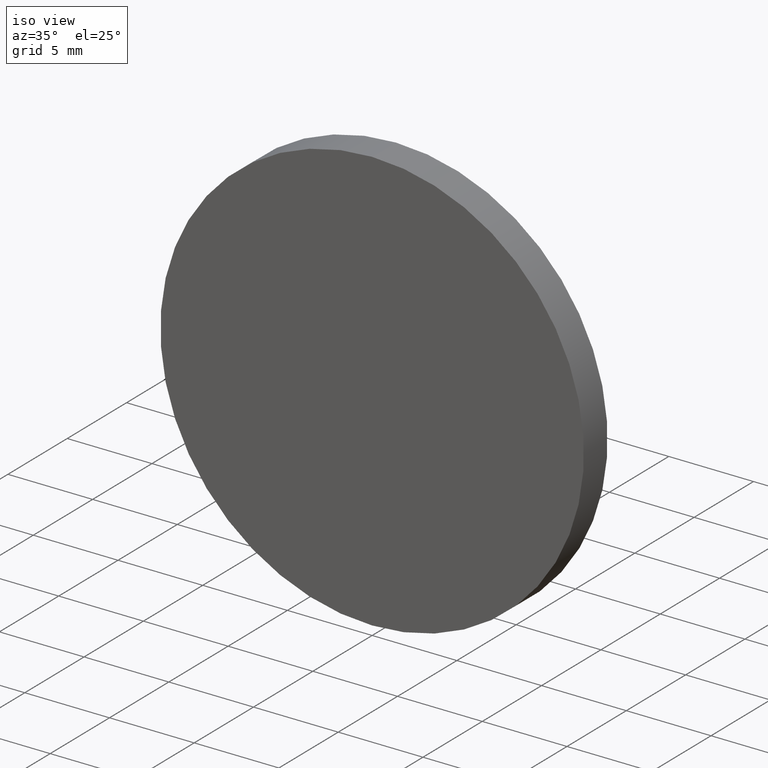
[diagram: clean part render]
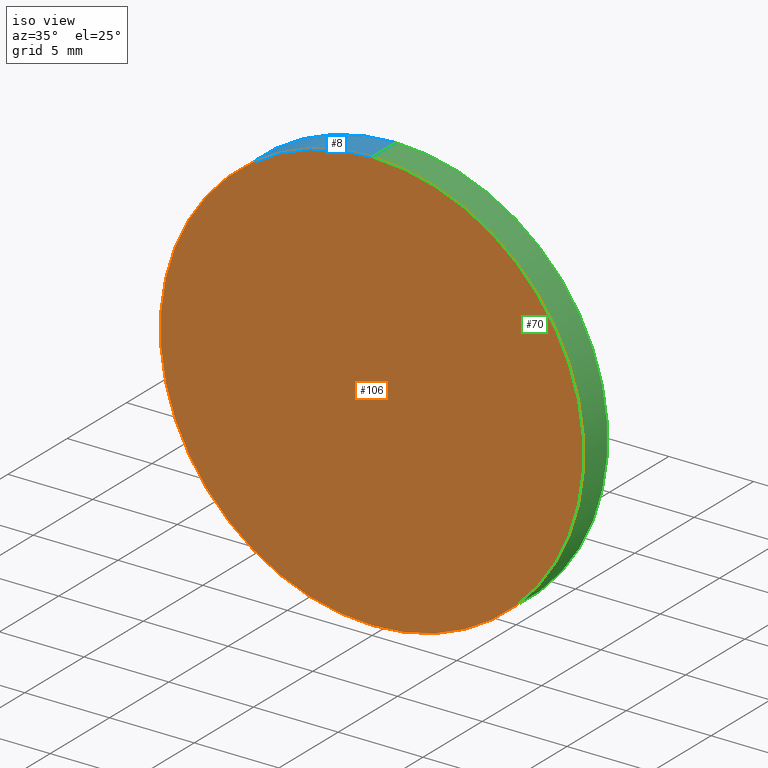
[diagram: same view with three faces highlighted in distinct colors, each labeled with its STEP entity id]
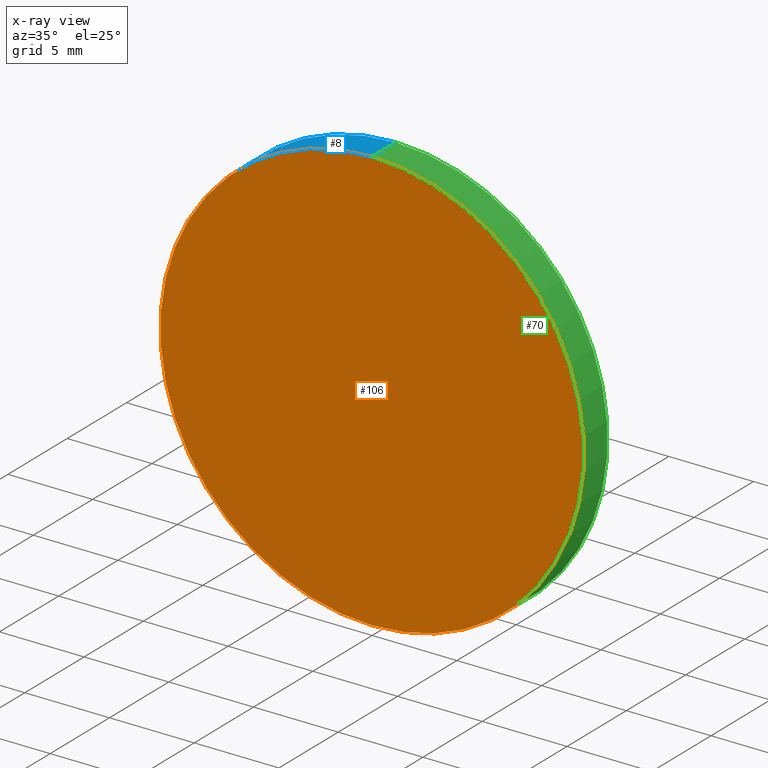
[diagram: x-ray of the same camera — body ghosted, the three highlighted faces saturated]
A machine part, iso view with three faces highlighted in distinct colors.
The next image is the same camera in x-ray (body ghosted, the three faces saturated) — at least one of them is partly hidden behind the body in this view.
Their STEP definitions:

[orange] entity #106 — the highlighted planar face has unit normal (0, 1, 0).
#1 = CARTESIAN_POINT ( 'NONE',  ( 0.0000000000000000000, 0.0000000000000000000, 0.0000000000000000000 ) ) ;
#4 = CARTESIAN_POINT ( 'NONE',  ( 0.0000000000000000000, 0.0000000000000000000, 0.0000000000000000000 ) ) ;
#5 = FACE_OUTER_BOUND ( 'NONE', #105, .T. ) ;
#18 = VERTEX_POINT ( 'NONE', #114 ) ;
#25 = PLANE ( 'NONE',  #56 ) ;
#32 = DIRECTION ( 'NONE',  ( 0.0000000000000000000, -0.0000000000000000000, 1.000000000000000000 ) ) ;
#34 = CIRCLE ( 'NONE', #57, 12.50000000000000000 ) ;
#38 = EDGE_CURVE ( 'NONE', #44, #18, #34, .T. ) ;
#44 = VERTEX_POINT ( 'NONE', #121 ) ;
#56 = AXIS2_PLACEMENT_3D ( 'NONE', #122, #110, #32 ) ;
#57 = AXIS2_PLACEMENT_3D ( 'NONE', #4, #79, #135 ) ;
#64 = AXIS2_PLACEMENT_3D ( 'NONE', #1, #73, #131 ) ;
#71 = CIRCLE ( 'NONE', #64, 12.50000000000000000 ) ;
#73 = DIRECTION ( 'NONE',  ( 0.0000000000000000000, 1.000000000000000000, 0.0000000000000000000 ) ) ;
#79 = DIRECTION ( 'NONE',  ( 0.0000000000000000000, 1.000000000000000000, 0.0000000000000000000 ) ) ;
#92 = ORIENTED_EDGE ( 'NONE', *, *, #38, .F. ) ;
#105 = EDGE_LOOP ( 'NONE', ( #132, #92 ) ) ;
#106 = ADVANCED_FACE ( 'NONE', ( #5 ), #25, .F. ) ;
#110 = DIRECTION ( 'NONE',  ( 0.0000000000000000000, 1.000000000000000000, 0.0000000000000000000 ) ) ;
#114 = CARTESIAN_POINT ( 'NONE',  ( 0.0000000000000000000, 0.0000000000000000000, -12.50000000000000000 ) ) ;
#115 = EDGE_CURVE ( 'NONE', #18, #44, #71, .T. ) ;
#121 = CARTESIAN_POINT ( 'NONE',  ( 1.530808498934191500E-015, 0.0000000000000000000, 12.50000000000000000 ) ) ;
#122 = CARTESIAN_POINT ( 'NONE',  ( 0.0000000000000000000, 0.0000000000000000000, 0.0000000000000000000 ) ) ;
#131 = DIRECTION ( 'NONE',  ( 0.0000000000000000000, 0.0000000000000000000, 1.000000000000000000 ) ) ;
#132 = ORIENTED_EDGE ( 'NONE', *, *, #115, .F. ) ;
#135 = DIRECTION ( 'NONE',  ( 0.0000000000000000000, 0.0000000000000000000, 1.000000000000000000 ) ) ;

[blue] entity #8 — the highlighted cylindrical surface (partial cylindrical patch) has radius 12.5 mm, axis along (-0, -1, -0).
#1 = CARTESIAN_POINT ( 'NONE',  ( 0.0000000000000000000, 0.0000000000000000000, 0.0000000000000000000 ) ) ;
#2 = DIRECTION ( 'NONE',  ( -0.0000000000000000000, -1.000000000000000000, -0.0000000000000000000 ) ) ;
#8 = ADVANCED_FACE ( 'NONE', ( #12 ), #99, .T. ) ;
#9 = LINE ( 'NONE', #88, #125 ) ;
#12 = FACE_OUTER_BOUND ( 'NONE', #85, .T. ) ;
#16 = CARTESIAN_POINT ( 'NONE',  ( 0.0000000000000000000, 2.000000000000000000, 0.0000000000000000000 ) ) ;
#18 = VERTEX_POINT ( 'NONE', #114 ) ;
#19 = CIRCLE ( 'NONE', #118, 12.50000000000000000 ) ;
#26 = DIRECTION ( 'NONE',  ( 0.0000000000000000000, 0.0000000000000000000, 1.000000000000000000 ) ) ;
#27 = DIRECTION ( 'NONE',  ( -0.0000000000000000000, -1.000000000000000000, -0.0000000000000000000 ) ) ;
#36 = DIRECTION ( 'NONE',  ( 0.0000000000000000000, 1.000000000000000000, 0.0000000000000000000 ) ) ;
#37 = DIRECTION ( 'NONE',  ( 0.0000000000000000000, 0.0000000000000000000, -1.000000000000000000 ) ) ;
#40 = ORIENTED_EDGE ( 'NONE', *, *, #47, .F. ) ;
#44 = VERTEX_POINT ( 'NONE', #121 ) ;
#47 = EDGE_CURVE ( 'NONE', #91, #58, #19, .T. ) ;
#50 = ORIENTED_EDGE ( 'NONE', *, *, #104, .F. ) ;
#58 = VERTEX_POINT ( 'NONE', #63 ) ;
#62 = DIRECTION ( 'NONE',  ( -0.0000000000000000000, -1.000000000000000000, -0.0000000000000000000 ) ) ;
#63 = CARTESIAN_POINT ( 'NONE',  ( 1.530808498934191500E-015, 2.000000000000000000, 12.50000000000000000 ) ) ;
#64 = AXIS2_PLACEMENT_3D ( 'NONE', #1, #73, #131 ) ;
#68 = ORIENTED_EDGE ( 'NONE', *, *, #115, .T. ) ;
#71 = CIRCLE ( 'NONE', #64, 12.50000000000000000 ) ;
#73 = DIRECTION ( 'NONE',  ( 0.0000000000000000000, 1.000000000000000000, 0.0000000000000000000 ) ) ;
#74 = EDGE_CURVE ( 'NONE', #91, #18, #9, .T. ) ;
#75 = CARTESIAN_POINT ( 'NONE',  ( 0.0000000000000000000, 2.000000000000000000, -12.50000000000000000 ) ) ;
#82 = AXIS2_PLACEMENT_3D ( 'NONE', #16, #27, #37 ) ;
#85 = EDGE_LOOP ( 'NONE', ( #50, #40, #138, #68 ) ) ;
#88 = CARTESIAN_POINT ( 'NONE',  ( 0.0000000000000000000, 2.000000000000000000, -12.50000000000000000 ) ) ;
#91 = VERTEX_POINT ( 'NONE', #75 ) ;
#93 = VECTOR ( 'NONE', #62, 1000.000000000000000 ) ;
#97 = LINE ( 'NONE', #133, #93 ) ;
#99 = CYLINDRICAL_SURFACE ( 'NONE', #82, 12.50000000000000000 ) ;
#104 = EDGE_CURVE ( 'NONE', #58, #44, #97, .T. ) ;
#112 = CARTESIAN_POINT ( 'NONE',  ( 0.0000000000000000000, 2.000000000000000000, 0.0000000000000000000 ) ) ;
#114 = CARTESIAN_POINT ( 'NONE',  ( 0.0000000000000000000, 0.0000000000000000000, -12.50000000000000000 ) ) ;
#115 = EDGE_CURVE ( 'NONE', #18, #44, #71, .T. ) ;
#118 = AXIS2_PLACEMENT_3D ( 'NONE', #112, #36, #26 ) ;
#121 = CARTESIAN_POINT ( 'NONE',  ( 1.530808498934191500E-015, 0.0000000000000000000, 12.50000000000000000 ) ) ;
#125 = VECTOR ( 'NONE', #2, 1000.000000000000000 ) ;
#131 = DIRECTION ( 'NONE',  ( 0.0000000000000000000, 0.0000000000000000000, 1.000000000000000000 ) ) ;
#133 = CARTESIAN_POINT ( 'NONE',  ( 1.530808498934191500E-015, 2.000000000000000000, 12.50000000000000000 ) ) ;
#138 = ORIENTED_EDGE ( 'NONE', *, *, #74, .T. ) ;

[green] entity #70 — the highlighted cylindrical surface (partial cylindrical patch) has radius 12.5 mm, axis along (-0, -1, -0).
#2 = DIRECTION ( 'NONE',  ( -0.0000000000000000000, -1.000000000000000000, -0.0000000000000000000 ) ) ;
#3 = DIRECTION ( 'NONE',  ( -0.0000000000000000000, -1.000000000000000000, -0.0000000000000000000 ) ) ;
#4 = CARTESIAN_POINT ( 'NONE',  ( 0.0000000000000000000, 0.0000000000000000000, 0.0000000000000000000 ) ) ;
#9 = LINE ( 'NONE', #88, #125 ) ;
#18 = VERTEX_POINT ( 'NONE', #114 ) ;
#23 = EDGE_LOOP ( 'NONE', ( #128, #54, #108, #102 ) ) ;
#33 = DIRECTION ( 'NONE',  ( 0.0000000000000000000, 0.0000000000000000000, 1.000000000000000000 ) ) ;
#34 = CIRCLE ( 'NONE', #57, 12.50000000000000000 ) ;
#35 = AXIS2_PLACEMENT_3D ( 'NONE', #51, #111, #33 ) ;
#38 = EDGE_CURVE ( 'NONE', #44, #18, #34, .T. ) ;
#39 = CYLINDRICAL_SURFACE ( 'NONE', #46, 12.50000000000000000 ) ;
#41 = CIRCLE ( 'NONE', #35, 12.50000000000000000 ) ;
#44 = VERTEX_POINT ( 'NONE', #121 ) ;
#46 = AXIS2_PLACEMENT_3D ( 'NONE', #134, #3, #124 ) ;
#51 = CARTESIAN_POINT ( 'NONE',  ( 0.0000000000000000000, 2.000000000000000000, 0.0000000000000000000 ) ) ;
#54 = ORIENTED_EDGE ( 'NONE', *, *, #104, .T. ) ;
#57 = AXIS2_PLACEMENT_3D ( 'NONE', #4, #79, #135 ) ;
#58 = VERTEX_POINT ( 'NONE', #63 ) ;
#62 = DIRECTION ( 'NONE',  ( -0.0000000000000000000, -1.000000000000000000, -0.0000000000000000000 ) ) ;
#63 = CARTESIAN_POINT ( 'NONE',  ( 1.530808498934191500E-015, 2.000000000000000000, 12.50000000000000000 ) ) ;
#65 = EDGE_CURVE ( 'NONE', #58, #91, #41, .T. ) ;
#70 = ADVANCED_FACE ( 'NONE', ( #123 ), #39, .T. ) ;
#74 = EDGE_CURVE ( 'NONE', #91, #18, #9, .T. ) ;
#75 = CARTESIAN_POINT ( 'NONE',  ( 0.0000000000000000000, 2.000000000000000000, -12.50000000000000000 ) ) ;
#79 = DIRECTION ( 'NONE',  ( 0.0000000000000000000, 1.000000000000000000, 0.0000000000000000000 ) ) ;
#88 = CARTESIAN_POINT ( 'NONE',  ( 0.0000000000000000000, 2.000000000000000000, -12.50000000000000000 ) ) ;
#91 = VERTEX_POINT ( 'NONE', #75 ) ;
#93 = VECTOR ( 'NONE', #62, 1000.000000000000000 ) ;
#97 = LINE ( 'NONE', #133, #93 ) ;
#102 = ORIENTED_EDGE ( 'NONE', *, *, #74, .F. ) ;
#104 = EDGE_CURVE ( 'NONE', #58, #44, #97, .T. ) ;
#108 = ORIENTED_EDGE ( 'NONE', *, *, #38, .T. ) ;
#111 = DIRECTION ( 'NONE',  ( 0.0000000000000000000, 1.000000000000000000, 0.0000000000000000000 ) ) ;
#114 = CARTESIAN_POINT ( 'NONE',  ( 0.0000000000000000000, 0.0000000000000000000, -12.50000000000000000 ) ) ;
#121 = CARTESIAN_POINT ( 'NONE',  ( 1.530808498934191500E-015, 0.0000000000000000000, 12.50000000000000000 ) ) ;
#123 = FACE_OUTER_BOUND ( 'NONE', #23, .T. ) ;
#124 = DIRECTION ( 'NONE',  ( 0.0000000000000000000, 0.0000000000000000000, -1.000000000000000000 ) ) ;
#125 = VECTOR ( 'NONE', #2, 1000.000000000000000 ) ;
#128 = ORIENTED_EDGE ( 'NONE', *, *, #65, .F. ) ;
#133 = CARTESIAN_POINT ( 'NONE',  ( 1.530808498934191500E-015, 2.000000000000000000, 12.50000000000000000 ) ) ;
#134 = CARTESIAN_POINT ( 'NONE',  ( 0.0000000000000000000, 2.000000000000000000, 0.0000000000000000000 ) ) ;
#135 = DIRECTION ( 'NONE',  ( 0.0000000000000000000, 0.0000000000000000000, 1.000000000000000000 ) ) ;